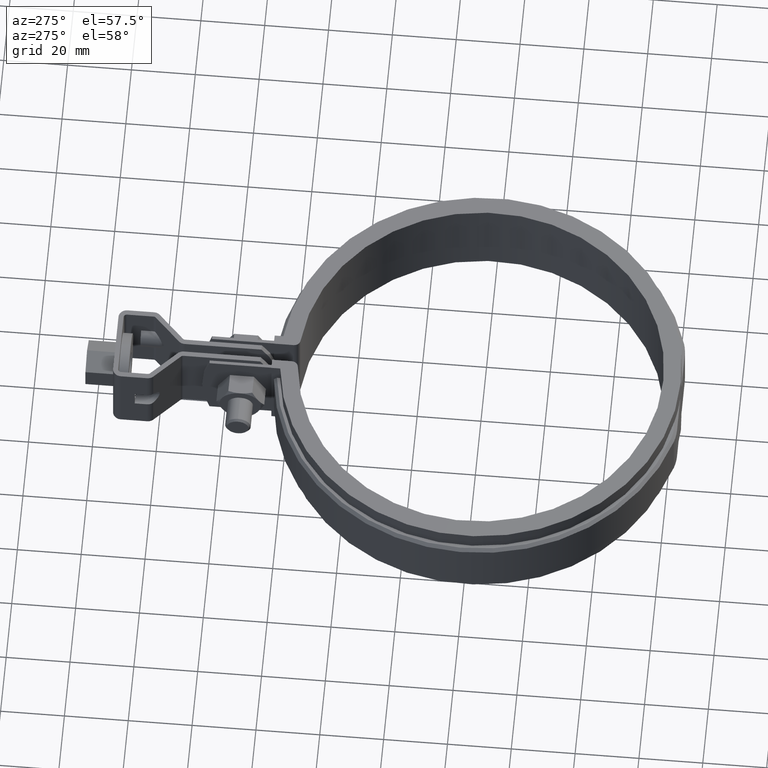
[diagram: clean part render]
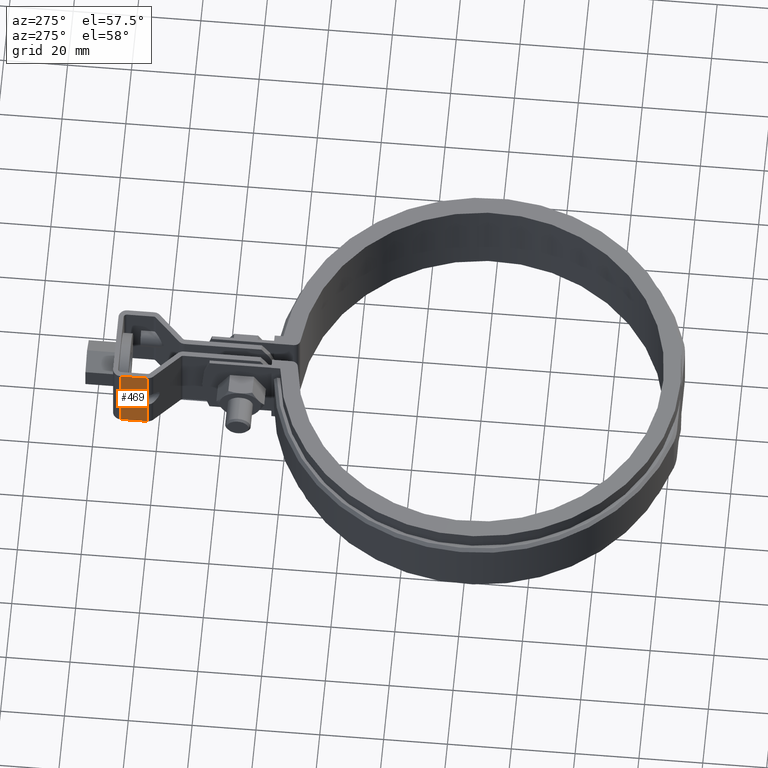
[diagram: same view with one face highlighted and labeled with its STEP entity id]
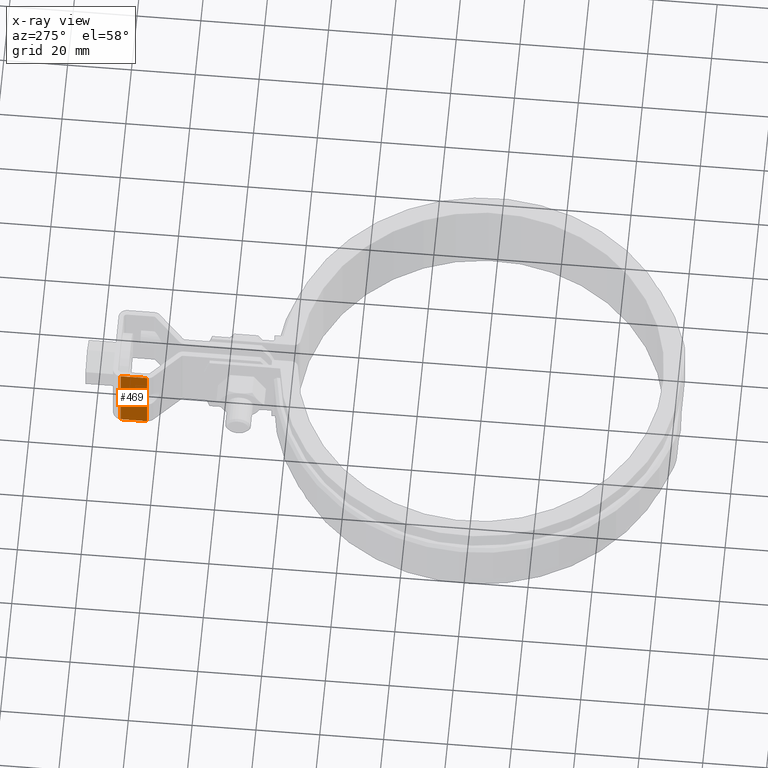
[diagram: x-ray of the same camera — body ghosted, the highlighted face saturated]
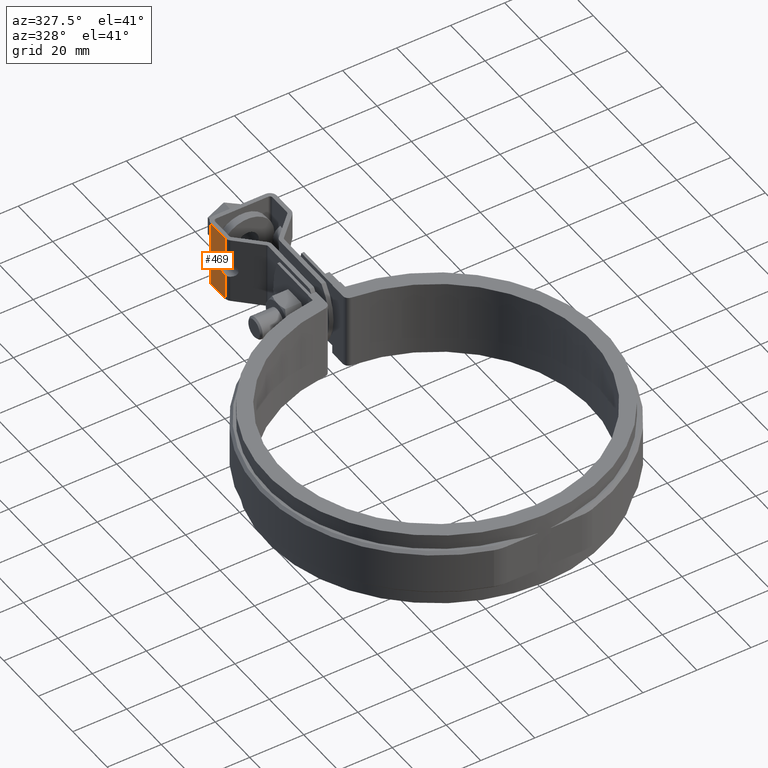
[diagram: same view with one face highlighted and labeled with its STEP entity id]
A machine part, auxiliary view. The second image highlights one B-rep face of the part: STEP entity #469.
The next image is the same camera in x-ray: the body ghosted, the highlighted face saturated — about 0% of this face is hidden behind the body in this view.
A second angle (auxiliary view) of the same face is appended — the face is thin or edge-on in the first view.
In plain terms, the highlighted planar face has unit normal (-1, -0, -0).
Its self-contained STEP definition (entity closure, byte-faithful):
#469 = ADVANCED_FACE( '', ( #851 ), #852, .T. );
#851 = FACE_OUTER_BOUND( '', #1853, .T. );
#852 = PLANE( '', #1854 );
#1853 = EDGE_LOOP( '', ( #3759, #3760, #3761, #3762, #3763, #3764, #3765, #3766 ) );
#1854 = AXIS2_PLACEMENT_3D( '', #3767, #3768, #3769 );
#3759 = ORIENTED_EDGE( '', *, *, #4614, .F. );
#3760 = ORIENTED_EDGE( '', *, *, #4586, .T. );
#3761 = ORIENTED_EDGE( '', *, *, #4588, .T. );
#3762 = ORIENTED_EDGE( '', *, *, #4583, .F. );
#3763 = ORIENTED_EDGE( '', *, *, #4590, .F. );
#3764 = ORIENTED_EDGE( '', *, *, #4508, .T. );
#3765 = ORIENTED_EDGE( '', *, *, #4515, .T. );
#3766 = ORIENTED_EDGE( '', *, *, #4608, .F. );
#3767 = CARTESIAN_POINT( '', ( -12.2500000000195, 103.497631763374, 12.4999999990614 ) );
#3768 = DIRECTION( '', ( -1.00000000000000, -2.55517071553623E-013, -1.69013704294045E-013 ) );
#3769 = DIRECTION( '', ( 2.55517071552404E-013, -1.00000000000000, 7.21711579387898E-012 ) );
#4508 = EDGE_CURVE( '', #5312, #5310, #5313, .T. );
#4515 = EDGE_CURVE( '', #5310, #5323, #5326, .T. );
#4583 = EDGE_CURVE( '', #5437, #5439, #5440, .T. );
#4586 = EDGE_CURVE( '', #5444, #5442, #5445, .T. );
#4588 = EDGE_CURVE( '', #5442, #5439, #5447, .T. );
#4590 = EDGE_CURVE( '', #5312, #5437, #5449, .T. );
#4608 = EDGE_CURVE( '', #5473, #5323, #5475, .T. );
#4614 = EDGE_CURVE( '', #5444, #5473, #5484, .T. );
#5310 = VERTEX_POINT( '', #8164 );
#5312 = VERTEX_POINT( '', #8166 );
#5313 = LINE( '', #8167, #8168 );
#5323 = VERTEX_POINT( '', #8181 );
#5326 = LINE( '', #8184, #8185 );
#5437 = VERTEX_POINT( '', #8370 );
#5439 = VERTEX_POINT( '', #8379 );
#5440 = LINE( '', #8380, #8381 );
#5442 = VERTEX_POINT( '', #8383 );
#5444 = VERTEX_POINT( '', #8385 );
#5445 = LINE( '', #8386, #8387 );
#5447 = LINE( '', #8398, #8399 );
#5449 = LINE( '', #8402, #8403 );
#5473 = VERTEX_POINT( '', #8439 );
#5475 = LINE( '', #8441, #8442 );
#5484 = LINE( '', #8453, #8454 );
#8164 = CARTESIAN_POINT( '', ( -12.2500000000216, 111.801825964260, 12.4999999990014 ) );
#8166 = CARTESIAN_POINT( '', ( -12.2500000000195, 103.497631763374, 12.4999999990614 ) );
#8167 = CARTESIAN_POINT( '', ( -12.2500000000195, 103.497631763374, 12.4999999990614 ) );
#8168 = VECTOR( '', #9209, 1000.00000000000 );
#8181 = CARTESIAN_POINT( '', ( -12.2500000000174, 111.801825964080, -12.5000000009986 ) );
#8184 = CARTESIAN_POINT( '', ( -12.2500000000216, 111.801825964260, 12.4999999990014 ) );
#8185 = VECTOR( '', #9222, 1000.00000000000 );
#8370 = CARTESIAN_POINT( '', ( -12.2500000000178, 103.497631763303, 2.64999999906135 ) );
#8379 = CARTESIAN_POINT( '', ( -12.2500000000189, 107.401825964189, 2.64999999903316 ) );
#8380 = CARTESIAN_POINT( '', ( -12.2500000000163, 97.4018259641888, 2.64999999910534 ) );
#8381 = VECTOR( '', #9327, 1000.00000000000 );
#8383 = CARTESIAN_POINT( '', ( -12.2500000000180, 107.401825964151, -2.65000000096678 ) );
#8385 = CARTESIAN_POINT( '', ( -12.2500000000169, 103.497631763265, -2.65000000093860 ) );
#8386 = CARTESIAN_POINT( '', ( -12.2500000000154, 97.4018259641505, -2.65000000089460 ) );
#8387 = VECTOR( '', #9334, 1000.00000000000 );
#8398 = CARTESIAN_POINT( '', ( -12.2500000000177, 107.401825964139, -4.25000000096677 ) );
#8399 = VECTOR( '', #9335, 1000.00000000000 );
#8402 = CARTESIAN_POINT( '', ( -12.2500000000195, 103.497631763374, 12.4999999990614 ) );
#8403 = VECTOR( '', #9337, 1000.00000000000 );
#8439 = CARTESIAN_POINT( '', ( -12.2500000000153, 103.497631763194, -12.5000000009386 ) );
#8441 = CARTESIAN_POINT( '', ( -12.2500000000153, 103.497631763194, -12.5000000009386 ) );
#8442 = VECTOR( '', #9365, 1000.00000000000 );
#8453 = CARTESIAN_POINT( '', ( -12.2500000000195, 103.497631763374, 12.4999999990614 ) );
#8454 = VECTOR( '', #9377, 1000.00000000000 );
#9209 = DIRECTION( '', ( -2.55517071552404E-013, 1.00000000000000, -7.21711579387898E-012 ) );
#9222 = DIRECTION( '', ( 1.69013704295889E-013, -7.21711579387894E-012, -1.00000000000000 ) );
#9327 = DIRECTION( '', ( -2.55517071552404E-013, 1.00000000000000, -7.21711579387898E-012 ) );
#9334 = DIRECTION( '', ( -2.55517071552404E-013, 1.00000000000000, -7.21711579387898E-012 ) );
#9335 = DIRECTION( '', ( -1.69015554831870E-013, 7.21711579387894E-012, 1.00000000000000 ) );
#9337 = DIRECTION( '', ( 1.69013704295889E-013, -7.21711579387894E-012, -1.00000000000000 ) );
#9365 = DIRECTION( '', ( -2.55517071552404E-013, 1.00000000000000, -7.21711579387898E-012 ) );
#9377 = DIRECTION( '', ( 1.69013704295889E-013, -7.21711579387894E-012, -1.00000000000000 ) );